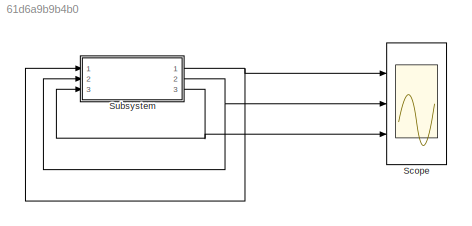
MODEL slx_61d6a9b9b4b0
KIND model
BLOCK [Scope] Scope
  Floating = off
  MaxDataPoints = 50000
  NumInputPorts = 3
  Ports = [3]
  ShowLegends = off
  YMax = 5~5~5
  YMin = -5~-5~-5
  ZoomMode = yonly
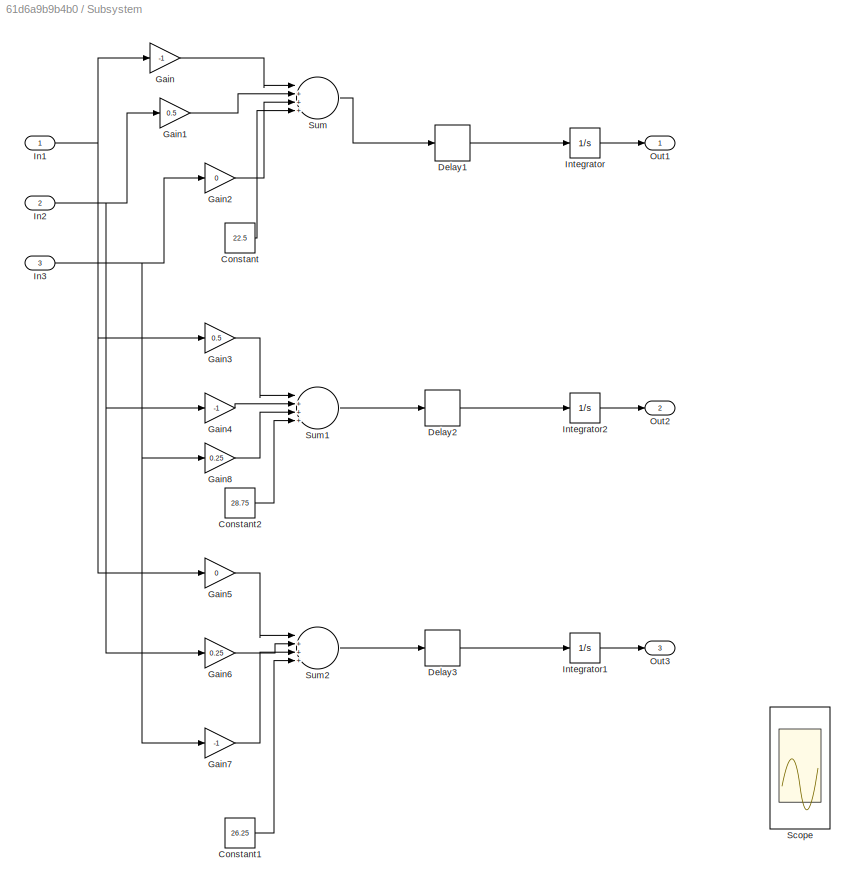
BLOCK [SubSystem] Subsystem
  Ports = [3, 3]
  RequestExecContextInheritance = off
BLOCK [Constant] Subsystem/Constant
  Value = 22.5
BLOCK [Constant] Subsystem/Constant1
  Value = 26.25
BLOCK [Constant] Subsystem/Constant2
  Value = 28.75
BLOCK [Delay] Subsystem/Delay1
  DelayLength = 1
  InputPortMap = u0
  Ports = [1, 1]
  SampleTime = 0.01
BLOCK [Delay] Subsystem/Delay2
  DelayLength = 1
  InputPortMap = u0
  Ports = [1, 1]
  SampleTime = 0.01
BLOCK [Delay] Subsystem/Delay3
  DelayLength = 1
  InputPortMap = u0
  Ports = [1, 1]
  SampleTime = 0.01
BLOCK [Gain] Subsystem/Gain
  Gain = -1
  OutDataTypeStr = Inherit: Inherit via internal rule
  ParamDataTypeStr = Inherit: Inherit via internal rule
  SaturateOnIntegerOverflow = off
BLOCK [Gain] Subsystem/Gain1
  Gain = 0.5
  OutDataTypeStr = Inherit: Inherit via internal rule
  ParamDataTypeStr = Inherit: Inherit via internal rule
  SaturateOnIntegerOverflow = off
BLOCK [Gain] Subsystem/Gain2
  Gain = 0
  OutDataTypeStr = Inherit: Inherit via internal rule
  ParamDataTypeStr = Inherit: Inherit via internal rule
  SaturateOnIntegerOverflow = off
BLOCK [Gain] Subsystem/Gain3
  Gain = 0.5
  OutDataTypeStr = Inherit: Inherit via internal rule
  ParamDataTypeStr = Inherit: Inherit via internal rule
  SaturateOnIntegerOverflow = off
BLOCK [Gain] Subsystem/Gain4
  Gain = -1
  OutDataTypeStr = Inherit: Inherit via internal rule
  ParamDataTypeStr = Inherit: Inherit via internal rule
  SaturateOnIntegerOverflow = off
BLOCK [Gain] Subsystem/Gain5
  Gain = 0
  OutDataTypeStr = Inherit: Inherit via internal rule
  ParamDataTypeStr = Inherit: Inherit via internal rule
  SaturateOnIntegerOverflow = off
BLOCK [Gain] Subsystem/Gain6
  Gain = 0.25
  OutDataTypeStr = Inherit: Inherit via internal rule
  ParamDataTypeStr = Inherit: Inherit via internal rule
  SaturateOnIntegerOverflow = off
BLOCK [Gain] Subsystem/Gain7
  Gain = -1
  OutDataTypeStr = Inherit: Inherit via internal rule
  ParamDataTypeStr = Inherit: Inherit via internal rule
  SaturateOnIntegerOverflow = off
BLOCK [Gain] Subsystem/Gain8
  Gain = 0.25
  OutDataTypeStr = Inherit: Inherit via internal rule
  ParamDataTypeStr = Inherit: Inherit via internal rule
  SaturateOnIntegerOverflow = off
BLOCK [Inport] Subsystem/In1
  IconDisplay = Port number
BLOCK [Inport] Subsystem/In2
  IconDisplay = Port number
  Port = 2
BLOCK [Inport] Subsystem/In3
  IconDisplay = Port number
  Port = 3
BLOCK [Integrator] Subsystem/Integrator
  InitialCondition = 45
  Ports = [1, 1]
BLOCK [Integrator] Subsystem/Integrator1
  InitialCondition = 35
  Ports = [1, 1]
BLOCK [Integrator] Subsystem/Integrator2
  InitialCondition = 35
  Ports = [1, 1]
BLOCK [Outport] Subsystem/Out1
  IconDisplay = Port number
BLOCK [Outport] Subsystem/Out2
  IconDisplay = Port number
  Port = 2
BLOCK [Outport] Subsystem/Out3
  IconDisplay = Port number
  Port = 3
BLOCK [Scope] Subsystem/Scope
  Floating = off
  NumInputPorts = 1
  Ports = [1]
  SaveName = ScopeData1
  ShowLegends = off
  ZoomMode = yonly
BLOCK [Sum] Subsystem/Sum
  InputSameDT = off
  Inputs = |++++
  OutDataTypeStr = Inherit: Inherit via internal rule
  Ports = [4, 1]
  SaturateOnIntegerOverflow = off
BLOCK [Sum] Subsystem/Sum1
  InputSameDT = off
  Inputs = |++++
  OutDataTypeStr = Inherit: Inherit via internal rule
  Ports = [4, 1]
  SaturateOnIntegerOverflow = off
BLOCK [Sum] Subsystem/Sum2
  InputSameDT = off
  Inputs = |++++
  OutDataTypeStr = Inherit: Inherit via internal rule
  Ports = [4, 1]
  SaturateOnIntegerOverflow = off
LINE Subsystem/Constant1:1 -> Subsystem/Sum2:4
LINE Subsystem/Constant2:1 -> Subsystem/Sum1:4
LINE Subsystem/Constant:1 -> Subsystem/Sum:4
LINE Subsystem/Delay1:1 -> Subsystem/Integrator:1
LINE Subsystem/Delay2:1 -> Subsystem/Integrator2:1
LINE Subsystem/Delay3:1 -> Subsystem/Integrator1:1
LINE Subsystem/Gain1:1 -> Subsystem/Sum:2
LINE Subsystem/Gain2:1 -> Subsystem/Sum:3
LINE Subsystem/Gain3:1 -> Subsystem/Sum1:1
LINE Subsystem/Gain4:1 -> Subsystem/Sum1:2
LINE Subsystem/Gain5:1 -> Subsystem/Sum2:1
LINE Subsystem/Gain6:1 -> Subsystem/Sum2:2
LINE Subsystem/Gain7:1 -> Subsystem/Sum2:3
LINE Subsystem/Gain8:1 -> Subsystem/Sum1:3
LINE Subsystem/Gain:1 -> Subsystem/Sum:1
NET Subsystem/In1:1 -> Subsystem/Gain3:1, Subsystem/Gain5:1, Subsystem/Gain:1
NET Subsystem/In2:1 -> Subsystem/Gain1:1, Subsystem/Gain4:1, Subsystem/Gain6:1
NET Subsystem/In3:1 -> Subsystem/Gain2:1, Subsystem/Gain7:1, Subsystem/Gain8:1
LINE Subsystem/Integrator1:1 -> Subsystem/Out3:1
LINE Subsystem/Integrator2:1 -> Subsystem/Out2:1
LINE Subsystem/Integrator:1 -> Subsystem/Out1:1
LINE Subsystem/Sum1:1 -> Subsystem/Delay2:1
LINE Subsystem/Sum2:1 -> Subsystem/Delay3:1
LINE Subsystem/Sum:1 -> Subsystem/Delay1:1
NET Subsystem:1 -> Scope:1, Subsystem:1
NET Subsystem:2 -> Scope:2, Subsystem:2
NET Subsystem:3 -> Scope:3, Subsystem:3
note: NET lines group one-source signal fan-out (src -> all destinations, sorted); 1:1 wires keep LINE
